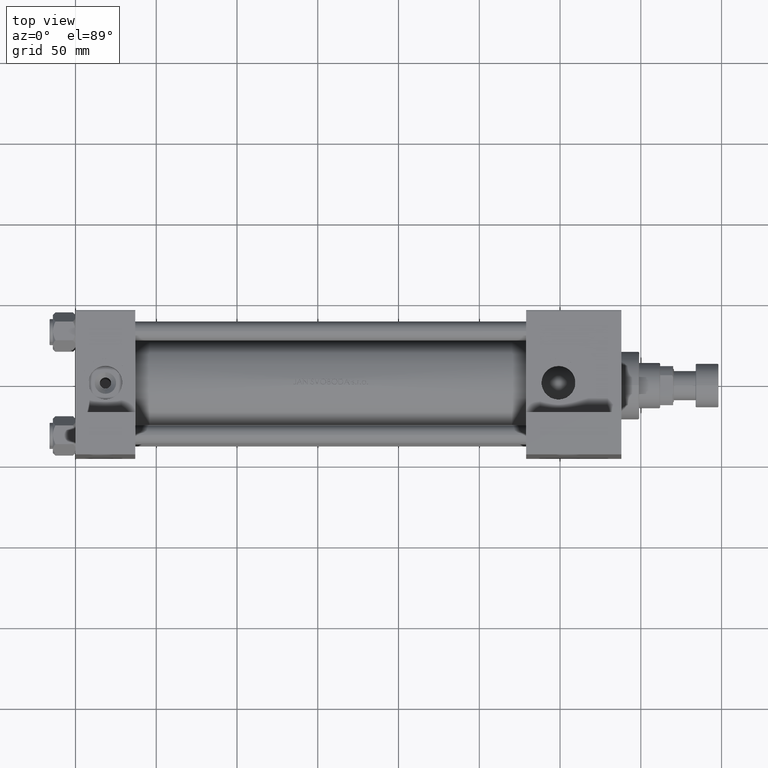
[diagram: clean part render]
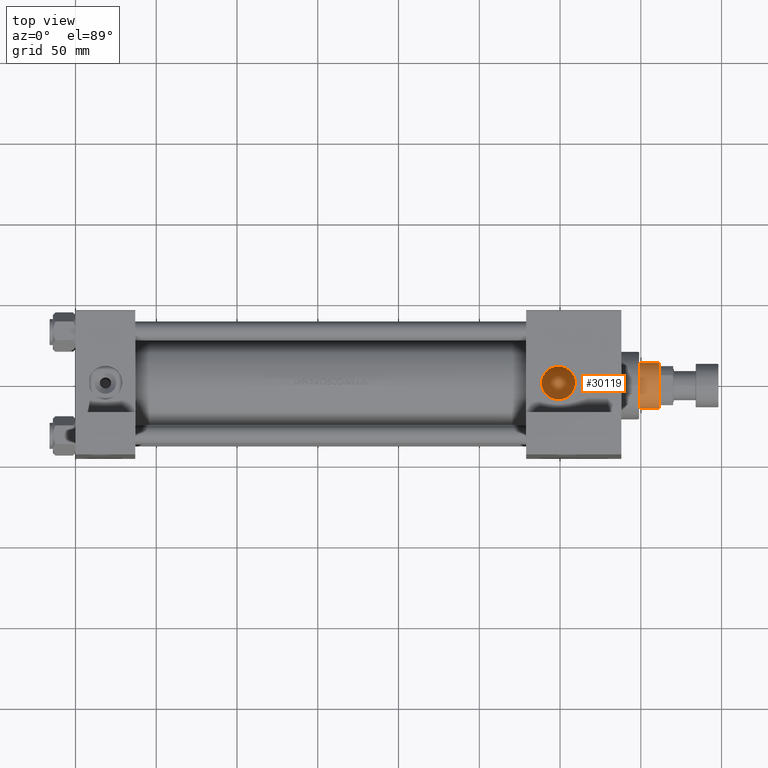
[diagram: same view with one face highlighted and labeled with its STEP entity id]
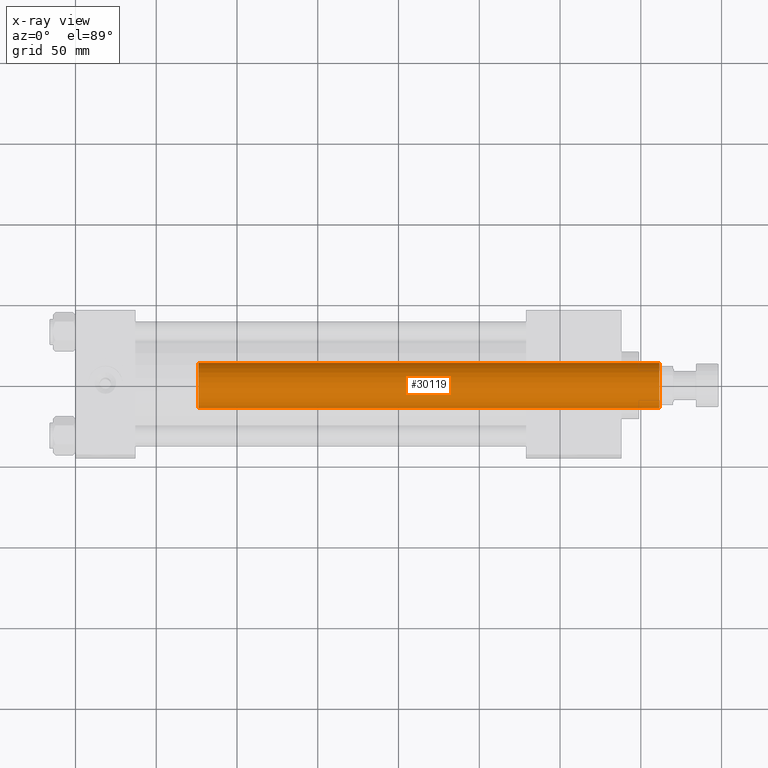
[diagram: x-ray of the same camera — body ghosted, the highlighted face saturated]
A machine part, top view. The second image highlights one B-rep face of the part: STEP entity #30119.
The next image is the same camera in x-ray: the body ghosted, the highlighted face saturated — about 0% of this face is hidden behind the body in this view.
In plain terms, the highlighted cylindrical surface (edge-blend (fillet) strip) has radius 14 mm, axis along (-1, 0, 0).
Its self-contained STEP definition (entity closure, byte-faithful):
#1074 = DIRECTION ( 'NONE',  ( 0.000000000000000000, 0.000000000000000000, -1.000000000000000000 ) ) ;
#1616 = DIRECTION ( 'NONE',  ( 1.000000000000000000, 0.000000000000000000, 0.000000000000000000 ) ) ;
#2007 = EDGE_CURVE ( 'NONE', #34284, #37788, #35103, .T. ) ;
#2010 = LINE ( 'NONE', #18244, #33066 ) ;
#4386 = CARTESIAN_POINT ( 'NONE',  ( 14.00000000000000178, 1.714505518806294835E-15, 324.4999999999999432 ) ) ;
#5772 = CARTESIAN_POINT ( 'NONE',  ( 0.000000000000000000, 0.000000000000000000, 324.9999999999999432 ) ) ;
#6155 = CIRCLE ( 'NONE', #10211, 14.00000000000000178 ) ;
#6635 = AXIS2_PLACEMENT_3D ( 'NONE', #5772, #21244, #17708 ) ;
#7171 = VERTEX_POINT ( 'NONE', #36657 ) ;
#7411 = EDGE_LOOP ( 'NONE', ( #20411, #26742, #25941, #18044 ) ) ;
#9172 = DIRECTION ( 'NONE',  ( 1.000000000000000000, 0.000000000000000000, 0.000000000000000000 ) ) ;
#9218 = CARTESIAN_POINT ( 'NONE',  ( 0.000000000000000000, 0.000000000000000000, 39.00000000000000000 ) ) ;
#10211 = AXIS2_PLACEMENT_3D ( 'NONE', #9218, #20885, #1616 ) ;
#11406 = EDGE_CURVE ( 'NONE', #37788, #7171, #6155, .T. ) ;
#13689 = DIRECTION ( 'NONE',  ( -0.000000000000000000, -0.000000000000000000, -1.000000000000000000 ) ) ;
#15462 = CARTESIAN_POINT ( 'NONE',  ( -14.00000000000000178, 0.000000000000000000, 324.4999999999999432 ) ) ;
#15948 = VERTEX_POINT ( 'NONE', #4386 ) ;
#17708 = DIRECTION ( 'NONE',  ( -1.000000000000000000, 0.000000000000000000, 0.000000000000000000 ) ) ;
#18044 = ORIENTED_EDGE ( 'NONE', *, *, #11406, .T. ) ;
#18244 = CARTESIAN_POINT ( 'NONE',  ( 14.00000000000000178, 1.714505518806294835E-15, 324.9999999999999432 ) ) ;
#19444 = CARTESIAN_POINT ( 'NONE',  ( -14.00000000000000178, 0.000000000000000000, 324.9999999999999432 ) ) ;
#20411 = ORIENTED_EDGE ( 'NONE', *, *, #21554, .F. ) ;
#20631 = AXIS2_PLACEMENT_3D ( 'NONE', #28444, #1074, #9172 ) ;
#20885 = DIRECTION ( 'NONE',  ( 0.000000000000000000, 0.000000000000000000, 1.000000000000000000 ) ) ;
#21244 = DIRECTION ( 'NONE',  ( -0.000000000000000000, -0.000000000000000000, -1.000000000000000000 ) ) ;
#21554 = EDGE_CURVE ( 'NONE', #15948, #7171, #2010, .T. ) ;
#25941 = ORIENTED_EDGE ( 'NONE', *, *, #2007, .T. ) ;
#26700 = CARTESIAN_POINT ( 'NONE',  ( -14.00000000000000178, 0.000000000000000000, 39.00000000000000000 ) ) ;
#26742 = ORIENTED_EDGE ( 'NONE', *, *, #39830, .T. ) ;
#28444 = CARTESIAN_POINT ( 'NONE',  ( 0.000000000000000000, 0.000000000000000000, 324.4999999999999432 ) ) ;
#30119 = ADVANCED_FACE ( 'NONE', ( #44048 ), #36182, .T. ) ;
#33066 = VECTOR ( 'NONE', #13689, 1000.000000000000000 ) ;
#34284 = VERTEX_POINT ( 'NONE', #15462 ) ;
#35103 = LINE ( 'NONE', #19444, #47278 ) ;
#36182 = CYLINDRICAL_SURFACE ( 'NONE', #6635, 14.00000000000000178 ) ;
#36657 = CARTESIAN_POINT ( 'NONE',  ( 14.00000000000000178, 1.714505518806294835E-15, 39.00000000000000000 ) ) ;
#37788 = VERTEX_POINT ( 'NONE', #26700 ) ;
#38657 = DIRECTION ( 'NONE',  ( -0.000000000000000000, -0.000000000000000000, -1.000000000000000000 ) ) ;
#39830 = EDGE_CURVE ( 'NONE', #15948, #34284, #40020, .T. ) ;
#40020 = CIRCLE ( 'NONE', #20631, 14.00000000000000178 ) ;
#44048 = FACE_OUTER_BOUND ( 'NONE', #7411, .T. ) ;
#47278 = VECTOR ( 'NONE', #38657, 1000.000000000000000 ) ;